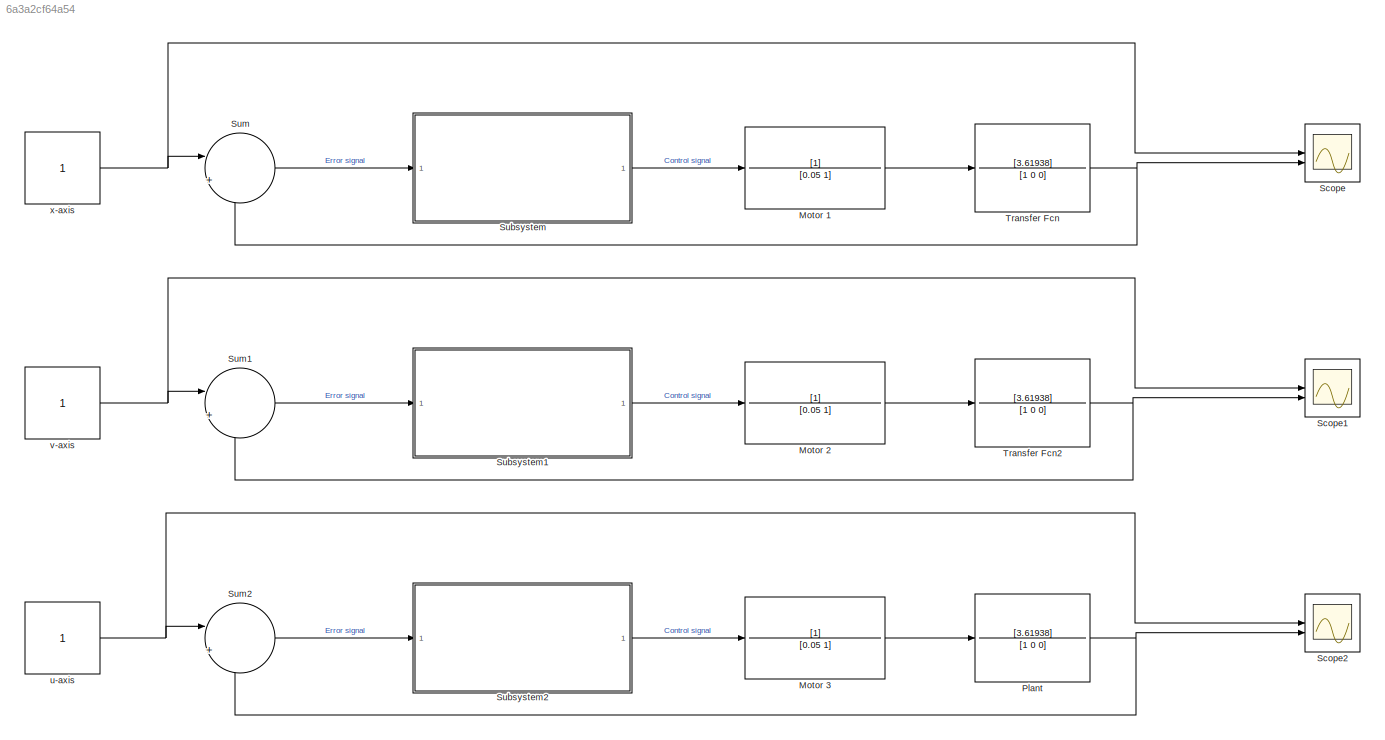
MODEL slx_6a3a2cf64a54
KIND model
CONFIG AbsTol = auto
CONFIG EnableMultiTasking = off
CONFIG FixedStep = auto
CONFIG MaxStep = auto
CONFIG MinStep = auto
CONFIG RelTol = 1e-3
CONFIG SampleTimeConstraint = Unconstrained
CONFIG SolverName = VariableStepAuto
CONFIG StartTime = 0.0
CONFIG StopTime = 5
BLOCK [TransferFcn] Motor 1
  Denominator = [0.05 1]
BLOCK [TransferFcn] Motor 2
  Denominator = [0.05 1]
BLOCK [TransferFcn] Motor 3
  Denominator = [0.05 1]
BLOCK [TransferFcn] Plant
  Denominator = [1 0 0]
  Numerator = [3.61938]
BLOCK [Scope] Scope
  Floating = off
  NumInputPorts = 2
  ScopeSpecificationString = Simulink.scopes.TimeScopeBlockCfg('CurrentConfiguration', extmgr.ConfigurationSet(extmgr.Configuration('Core','General UI',true),extmgr.Configuration('Core','Source UI',true),extmgr.Configuration('Sources','WiredSimulink',true),extmgr.Configuration('Visuals','Time Domain',true,'SerializedDisplays',{struct('MinYLimReal','-0.13547','MaxYLimReal','1.21925','YLabelReal','','MinYLimMag','0.00000','MaxY...<+1413ch>
BLOCK [Scope] Scope1
  Floating = off
  NumInputPorts = 2
  ScopeSpecificationString = Simulink.scopes.TimeScopeBlockCfg('CurrentConfiguration', extmgr.ConfigurationSet(extmgr.Configuration('Core','General UI',true),extmgr.Configuration('Core','Source UI',true),extmgr.Configuration('Sources','WiredSimulink',true,'DataLoggingVariableName','ScopeData1'),extmgr.Configuration('Visuals','Time Domain',true,'SerializedDisplays',{struct('MinYLimReal','-0.13547','MaxYLimReal','1.21925','YLab...<+1452ch>
BLOCK [Scope] Scope2
  Floating = off
  NumInputPorts = 2
  ScopeSpecificationString = Simulink.scopes.TimeScopeBlockCfg('CurrentConfiguration', extmgr.ConfigurationSet(extmgr.Configuration('Core','General UI',true),extmgr.Configuration('Core','Source UI',true),extmgr.Configuration('Sources','WiredSimulink',true,'DataLoggingVariableName','ScopeData2'),extmgr.Configuration('Visuals','Time Domain',true,'SerializedDisplays',{struct('MinYLimReal','-0.13547','MaxYLimReal','1.21925','YLab...<+1452ch>
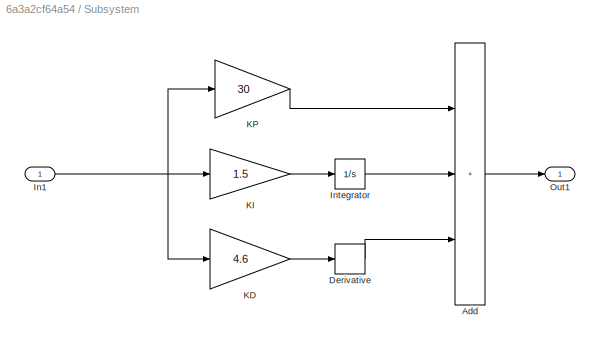
BLOCK [SubSystem] Subsystem
BLOCK [Sum] Subsystem/Add
  IconShape = rectangular
  Inputs = +++
BLOCK [Derivative] Subsystem/Derivative
BLOCK [Inport] Subsystem/In1
BLOCK [Integrator] Subsystem/Integrator
BLOCK [Gain] Subsystem/KD
  Gain = 4.6
BLOCK [Gain] Subsystem/KI
  Gain = 1.5
BLOCK [Gain] Subsystem/KP
  Gain = 30
BLOCK [Outport] Subsystem/Out1
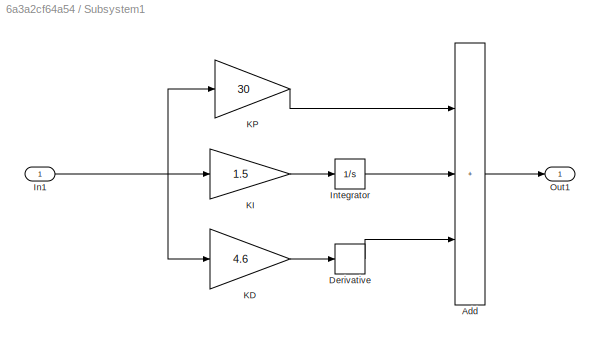
BLOCK [SubSystem] Subsystem1
BLOCK [Sum] Subsystem1/Add
  IconShape = rectangular
  Inputs = +++
BLOCK [Derivative] Subsystem1/Derivative
BLOCK [Inport] Subsystem1/In1
BLOCK [Integrator] Subsystem1/Integrator
BLOCK [Gain] Subsystem1/KD
  Gain = 4.6
BLOCK [Gain] Subsystem1/KI
  Gain = 1.5
BLOCK [Gain] Subsystem1/KP
  Gain = 30
BLOCK [Outport] Subsystem1/Out1
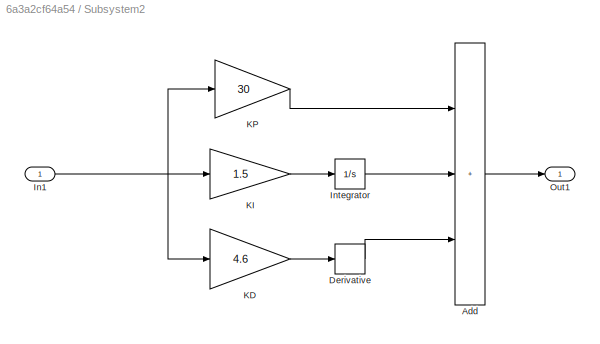
BLOCK [SubSystem] Subsystem2
BLOCK [Sum] Subsystem2/Add
  IconShape = rectangular
  Inputs = +++
BLOCK [Derivative] Subsystem2/Derivative
BLOCK [Inport] Subsystem2/In1
BLOCK [Integrator] Subsystem2/Integrator
BLOCK [Gain] Subsystem2/KD
  Gain = 4.6
BLOCK [Gain] Subsystem2/KI
  Gain = 1.5
BLOCK [Gain] Subsystem2/KP
  Gain = 30
BLOCK [Outport] Subsystem2/Out1
BLOCK [Sum] Sum
  Inputs = |+-
BLOCK [Sum] Sum1
  Inputs = |+-
BLOCK [Sum] Sum2
  Inputs = |+-
BLOCK [TransferFcn] Transfer Fcn
  Denominator = [1 0 0]
  Numerator = [3.61938]
BLOCK [TransferFcn] Transfer Fcn2
  Denominator = [1 0 0]
  Numerator = [3.61938]
BLOCK [Constant] u-axis
BLOCK [Constant] v-axis
BLOCK [Constant] x-axis
LINE Motor 1:1 -> Transfer Fcn:1
LINE Motor 2:1 -> Transfer Fcn2:1
LINE Motor 3:1 -> Plant:1
NET Plant:1 -> Scope2:2, Sum2:2
LINE Subsystem/Add:1 -> Subsystem/Out1:1
LINE Subsystem/Derivative:1 -> Subsystem/Add:3
NET Subsystem/In1:1 -> Subsystem/KD:1, Subsystem/KI:1, Subsystem/KP:1
LINE Subsystem/Integrator:1 -> Subsystem/Add:2
LINE Subsystem/KD:1 -> Subsystem/Derivative:1
LINE Subsystem/KI:1 -> Subsystem/Integrator:1
LINE Subsystem/KP:1 -> Subsystem/Add:1
LINE Subsystem1/Add:1 -> Subsystem1/Out1:1
LINE Subsystem1/Derivative:1 -> Subsystem1/Add:3
NET Subsystem1/In1:1 -> Subsystem1/KD:1, Subsystem1/KI:1, Subsystem1/KP:1
LINE Subsystem1/Integrator:1 -> Subsystem1/Add:2
LINE Subsystem1/KD:1 -> Subsystem1/Derivative:1
LINE Subsystem1/KI:1 -> Subsystem1/Integrator:1
LINE Subsystem1/KP:1 -> Subsystem1/Add:1
LINE Subsystem1:1 -> Motor 2:1
LINE Subsystem2/Add:1 -> Subsystem2/Out1:1
LINE Subsystem2/Derivative:1 -> Subsystem2/Add:3
NET Subsystem2/In1:1 -> Subsystem2/KD:1, Subsystem2/KI:1, Subsystem2/KP:1
LINE Subsystem2/Integrator:1 -> Subsystem2/Add:2
LINE Subsystem2/KD:1 -> Subsystem2/Derivative:1
LINE Subsystem2/KI:1 -> Subsystem2/Integrator:1
LINE Subsystem2/KP:1 -> Subsystem2/Add:1
LINE Subsystem2:1 -> Motor 3:1
LINE Subsystem:1 -> Motor 1:1
LINE Sum1:1 -> Subsystem1:1
LINE Sum2:1 -> Subsystem2:1
LINE Sum:1 -> Subsystem:1
NET Transfer Fcn2:1 -> Scope1:2, Sum1:2
NET Transfer Fcn:1 -> Scope:2, Sum:2
NET u-axis:1 -> Scope2:1, Sum2:1
NET v-axis:1 -> Scope1:1, Sum1:1
NET x-axis:1 -> Scope:1, Sum:1
note: NET lines group one-source signal fan-out (src -> all destinations, sorted); 1:1 wires keep LINE
